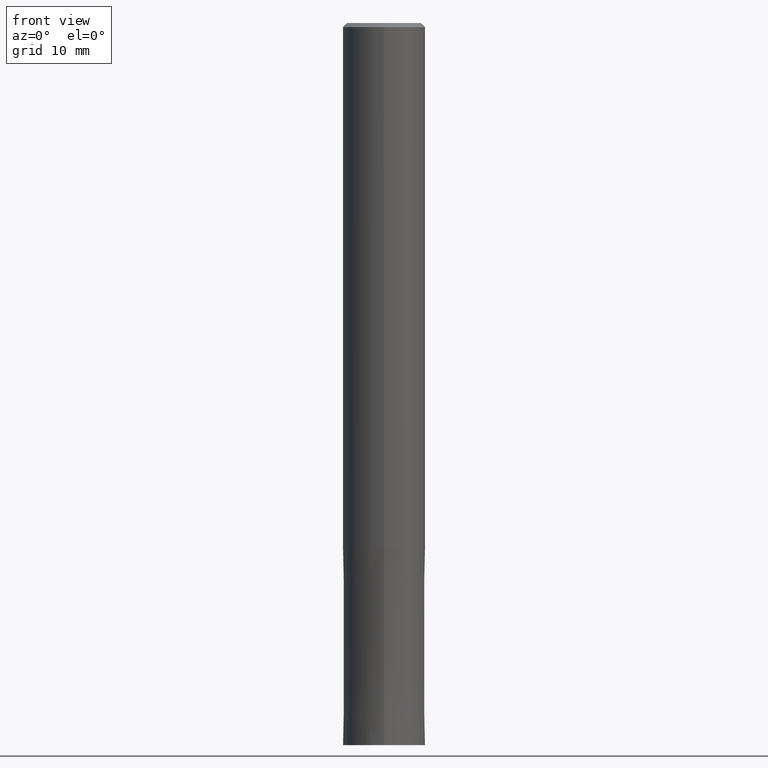
[diagram: clean part render]
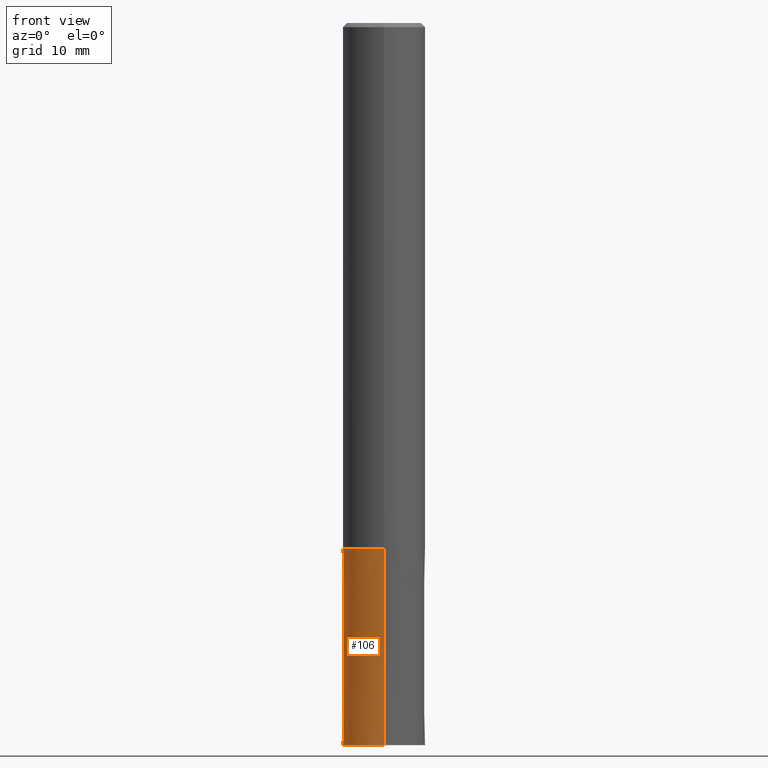
[diagram: same view with one face highlighted and labeled with its STEP entity id]
A machine part, front view. The second image highlights one B-rep face of the part: STEP entity #106.
In plain terms, the highlighted conical surface has half-angle 0 deg.
Its self-contained STEP definition (entity closure, byte-faithful):
#60=VERTEX_POINT('',#148);
#88=VERTEX_POINT('',#179);
#94=EDGE_CURVE('',#60,#114,#185,.T.);
#102=VERTEX_POINT('',#195);
#106=ADVANCED_FACE('',(#199),#200,.T.);
#108=EDGE_CURVE('',#102,#114,#202,.T.);
#114=VERTEX_POINT('',#211);
#120=EDGE_CURVE('',#60,#88,#218,.T.);
#124=EDGE_CURVE('',#88,#102,#222,.T.);
#148=CARTESIAN_POINT('',(4.89842541528951E-016,-4.0,-70.0));
#179=CARTESIAN_POINT('',(4.89830295465413E-016,-3.9999,-51.0));
#185=CIRCLE('',#284,4.0);
#195=CARTESIAN_POINT('',(0.0,3.9999,-51.0));
#199=FACE_OUTER_BOUND('',#300,.T.);
#200=CONICAL_SURFACE('',#301,3.99995,5.26315789469935E-006);
#202=LINE('',#304,#305);
#211=CARTESIAN_POINT('',(0.0,4.0,-70.0));
#218=LINE('',#322,#323);
#222=CIRCLE('',#330,3.9999);
#284=AXIS2_PLACEMENT_3D('',#383,#384,#385);
#300=EDGE_LOOP('',(#402,#403,#404,#405));
#301=AXIS2_PLACEMENT_3D('',#406,#407,#408);
#304=CARTESIAN_POINT('',(-4.89836418497182E-016,3.99995,-60.5));
#305=VECTOR('',#409,1.0);
#322=CARTESIAN_POINT('',(4.89836418497182E-016,-3.99995,-60.5));
#323=VECTOR('',#432,1.0);
#330=AXIS2_PLACEMENT_3D('',#434,#435,#436);
#383=CARTESIAN_POINT('',(0.0,0.0,-70.0));
#384=DIRECTION('',(0.0,0.0,-1.0));
#385=DIRECTION('',(0.0,1.0,0.0));
#402=ORIENTED_EDGE('',*,*,#108,.T.);
#403=ORIENTED_EDGE('',*,*,#94,.F.);
#404=ORIENTED_EDGE('',*,*,#120,.T.);
#405=ORIENTED_EDGE('',*,*,#124,.T.);
#406=CARTESIAN_POINT('',(0.0,0.0,-60.5));
#407=DIRECTION('',(0.0,-0.0,-1.0));
#408=DIRECTION('',(0.0,1.0,0.0));
#409=DIRECTION('',(-6.44529659898948E-022,5.26315789467505E-006,-0.99999999998615));
#432=DIRECTION('',(-6.44529659898947E-022,5.26315789467505E-006,0.99999999998615));
#434=CARTESIAN_POINT('',(0.0,0.0,-51.0));
#435=DIRECTION('',(0.0,0.0,-1.0));
#436=DIRECTION('',(0.0,1.0,0.0));